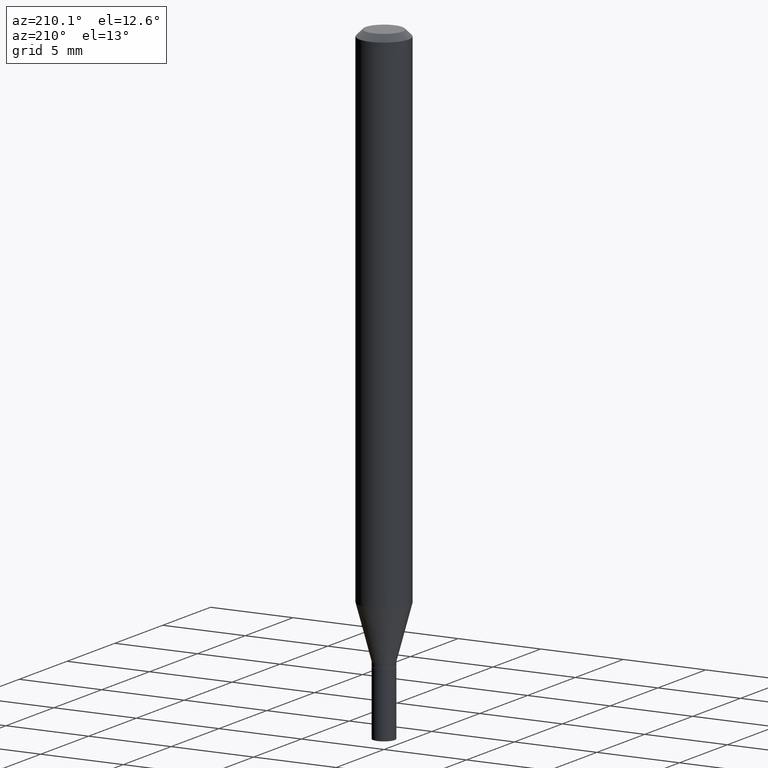
[diagram: clean part render]
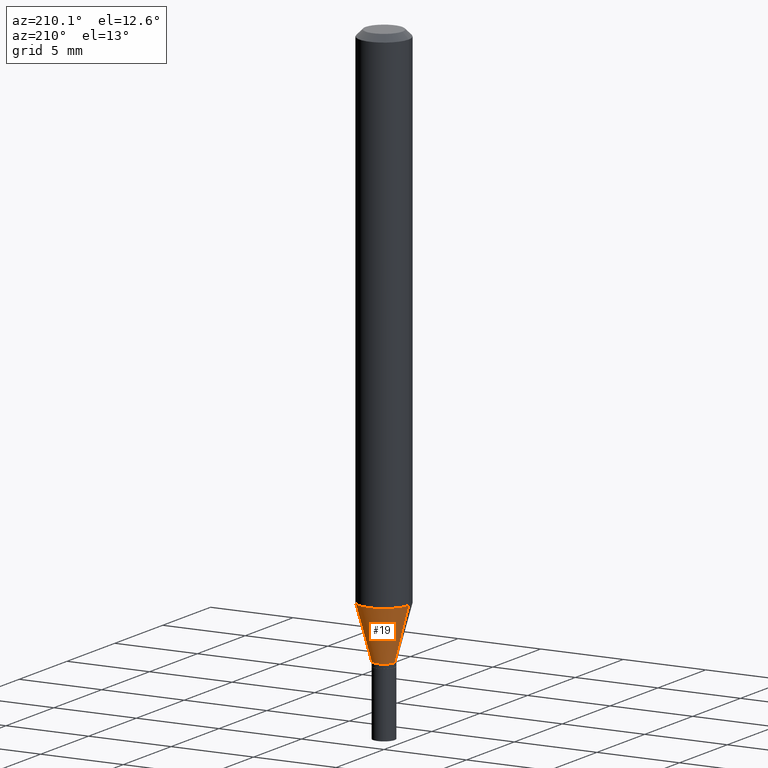
[diagram: same view with one face highlighted and labeled with its STEP entity id]
A machine part, auxiliary view. The second image highlights one B-rep face of the part: STEP entity #19.
In plain terms, the highlighted conical surface has half-angle 15 deg.
Its self-contained STEP definition (entity closure, byte-faithful):
#19 = ADVANCED_FACE ( 'NONE', ( #161 ), #59, .T. ) ;
#23 = AXIS2_PLACEMENT_3D ( 'NONE', #192, #299, #393 ) ;
#24 = CARTESIAN_POINT ( 'NONE',  ( 0.02559999999999991796, -4.845128653912631909E-15, -1.336500000000000021 ) ) ;
#26 = EDGE_CURVE ( 'NONE', #319, #460, #316, .T. ) ;
#59 = CONICAL_SURFACE ( 'NONE', #23, 0.02559999999999991796, 0.2617993877991497409 ) ;
#97 = LINE ( 'NONE', #447, #149 ) ;
#115 = EDGE_CURVE ( 'NONE', #388, #460, #97, .T. ) ;
#116 = CARTESIAN_POINT ( 'NONE',  ( -0.05904999999999999832, -3.810922920551955991E-15, -1.211662900486820904 ) ) ;
#121 = CARTESIAN_POINT ( 'NONE',  ( 2.963083826752325828E-29, -4.230498406018294695E-15, -1.211662900486820904 ) ) ;
#130 = AXIS2_PLACEMENT_3D ( 'NONE', #152, #218, #326 ) ;
#149 = VECTOR ( 'NONE', #408, 39.37007874015748143 ) ;
#152 = CARTESIAN_POINT ( 'NONE',  ( 3.268369059466435044E-29, -4.666364809363864422E-15, -1.336500000000000021 ) ) ;
#161 = FACE_OUTER_BOUND ( 'NONE', #458, .T. ) ;
#179 = AXIS2_PLACEMENT_3D ( 'NONE', #121, #224, #297 ) ;
#192 = CARTESIAN_POINT ( 'NONE',  ( 3.268369059466435044E-29, -4.666364809363864422E-15, -1.336500000000000021 ) ) ;
#210 = VERTEX_POINT ( 'NONE', #232 ) ;
#211 = LINE ( 'NONE', #24, #434 ) ;
#218 = DIRECTION ( 'NONE',  ( -2.445468806185136597E-29, 3.491481338843145583E-15, 1.000000000000000000 ) ) ;
#224 = DIRECTION ( 'NONE',  ( -2.445468806185136597E-29, 3.491481338843145583E-15, 1.000000000000000000 ) ) ;
#232 = CARTESIAN_POINT ( 'NONE',  ( 0.02559999999999991796, -4.845128653912631909E-15, -1.336500000000000021 ) ) ;
#238 = DIRECTION ( 'NONE',  ( 0.2588190451025210725, 1.565188264969624137E-15, 0.9659258262890682012 ) ) ;
#248 = ORIENTED_EDGE ( 'NONE', *, *, #115, .T. ) ;
#252 = ORIENTED_EDGE ( 'NONE', *, *, #370, .F. ) ;
#275 = ORIENTED_EDGE ( 'NONE', *, *, #449, .T. ) ;
#279 = ORIENTED_EDGE ( 'NONE', *, *, #26, .F. ) ;
#297 = DIRECTION ( 'NONE',  ( 1.000000000000000000, -6.982962677686273021E-15, 0.000000000000000000 ) ) ;
#299 = DIRECTION ( 'NONE',  ( -2.445468806185136597E-29, 3.491481338843145583E-15, 1.000000000000000000 ) ) ;
#316 = CIRCLE ( 'NONE', #179, 0.05904999999999999832 ) ;
#319 = VERTEX_POINT ( 'NONE', #385 ) ;
#326 = DIRECTION ( 'NONE',  ( 1.000000000000000000, -6.982962677686249356E-15, 0.000000000000000000 ) ) ;
#370 = EDGE_CURVE ( 'NONE', #210, #319, #211, .T. ) ;
#379 = CIRCLE ( 'NONE', #130, 0.02559999999999991796 ) ;
#381 = CARTESIAN_POINT ( 'NONE',  ( -0.02559999999999991796, -4.147694394780617933E-15, -1.336500000000000021 ) ) ;
#385 = CARTESIAN_POINT ( 'NONE',  ( 0.05904999999999999832, -4.642842352135668037E-15, -1.211662900486820904 ) ) ;
#388 = VERTEX_POINT ( 'NONE', #381 ) ;
#393 = DIRECTION ( 'NONE',  ( 1.000000000000000000, -6.982962677686249356E-15, 0.000000000000000000 ) ) ;
#408 = DIRECTION ( 'NONE',  ( -0.2588190451025210725, 5.211531920934548675E-15, 0.9659258262890682012 ) ) ;
#434 = VECTOR ( 'NONE', #238, 39.37007874015748143 ) ;
#447 = CARTESIAN_POINT ( 'NONE',  ( -0.02559999999999991796, -4.484465869009279875E-15, -1.336500000000000021 ) ) ;
#449 = EDGE_CURVE ( 'NONE', #210, #388, #379, .T. ) ;
#458 = EDGE_LOOP ( 'NONE', ( #275, #248, #279, #252 ) ) ;
#460 = VERTEX_POINT ( 'NONE', #116 ) ;